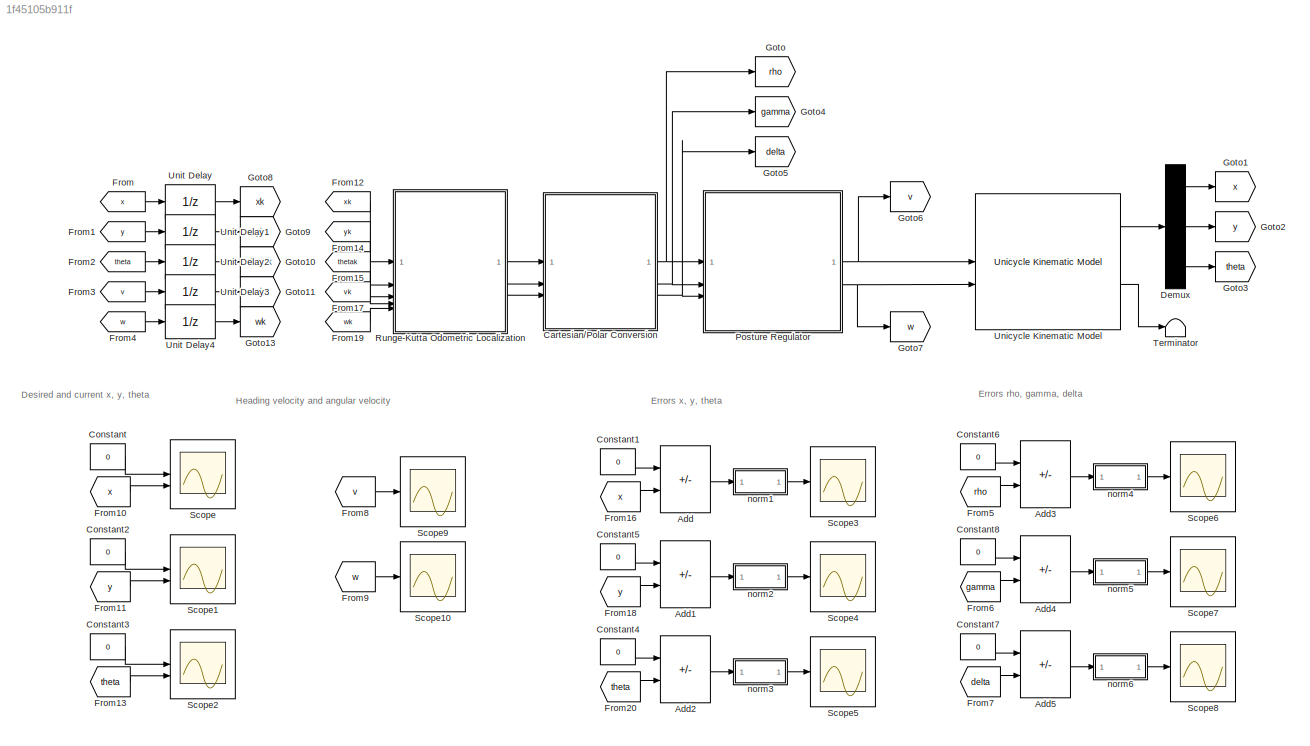
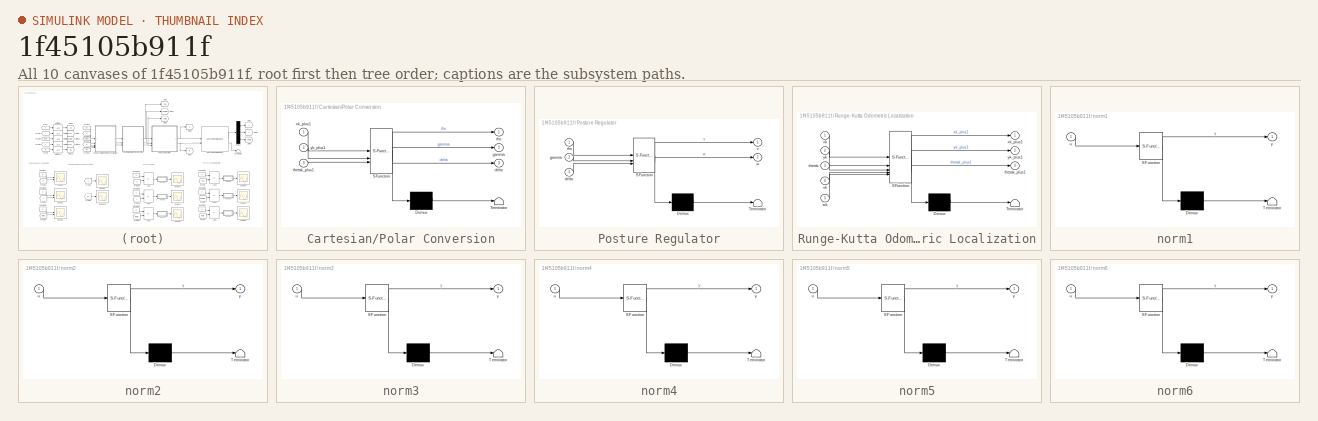
[diagram: thumbnail index - all 10 canvases of the model, root first then tree order]
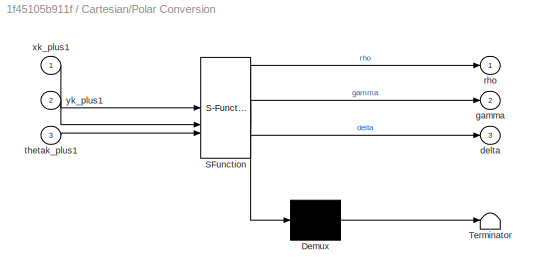
MODEL slx_1f45105b911f
KIND model
CONFIG AbsTol = auto
CONFIG EnableMultiTasking = off
CONFIG FixedStep = auto
CONFIG MaxStep = auto
CONFIG MinStep = auto
CONFIG RelTol = 1e-3
CONFIG SampleTimeConstraint = Unconstrained
CONFIG SolverName = VariableStepAuto
CONFIG StartTime = 0.0
CONFIG StopTime = 15
BLOCK [Sum] Add
  IconShape = rectangular
  Inputs = +-
BLOCK [Sum] Add1
  IconShape = rectangular
  Inputs = +-
BLOCK [Sum] Add2
  IconShape = rectangular
  Inputs = +-
BLOCK [Sum] Add3
  IconShape = rectangular
  Inputs = +-
BLOCK [Sum] Add4
  IconShape = rectangular
  Inputs = +-
BLOCK [Sum] Add5
  IconShape = rectangular
  Inputs = +-
BLOCK [SubSystem] Cartesian//Polar Conversion
  ErrorFcn = Stateflow.Translate.translate
  PermitHierarchicalResolution = ExplicitOnly
  SFBlockType = MATLAB Function
  TreatAsAtomicUnit = on
BLOCK [Demux] Cartesian//Polar Conversion/ Demux 
  Outputs = 1
BLOCK [S-Function] Cartesian//Polar Conversion/ SFunction 
  EnableBusSupport = on
  FunctionName = sf_sfun
  PortCounts = [3 4]
  SFcnIsStateOwnerBlock = off
  SFunctionDeploymentMode = off
  Tag = Stateflow S-Function 3
BLOCK [Terminator] Cartesian//Polar Conversion/ Terminator 
BLOCK [Outport] Cartesian//Polar Conversion/delta
  Port = 3
BLOCK [Outport] Cartesian//Polar Conversion/gamma
  Port = 2
BLOCK [Outport] Cartesian//Polar Conversion/rho
BLOCK [Inport] Cartesian//Polar Conversion/thetak_plus1
  Port = 3
BLOCK [Inport] Cartesian//Polar Conversion/xk_plus1
BLOCK [Inport] Cartesian//Polar Conversion/yk_plus1
  Port = 2
BLOCK [Constant] Constant
  Value = 0
BLOCK [Constant] Constant1
  Value = 0
BLOCK [Constant] Constant2
  Value = 0
BLOCK [Constant] Constant3
  Value = 0
BLOCK [Constant] Constant4
  Value = 0
BLOCK [Constant] Constant5
  Value = 0
BLOCK [Constant] Constant6
  Value = 0
BLOCK [Constant] Constant7
  Value = 0
BLOCK [Constant] Constant8
  Value = 0
BLOCK [Demux] Demux
  Outputs = 3
BLOCK [From] From
  GotoTag = x
BLOCK [From] From1
  GotoTag = y
BLOCK [From] From10
  GotoTag = x
BLOCK [From] From11
  GotoTag = y
BLOCK [From] From12
  GotoTag = xk
BLOCK [From] From13
  GotoTag = theta
BLOCK [From] From14
  GotoTag = yk
BLOCK [From] From15
  GotoTag = thetak
BLOCK [From] From16
  GotoTag = x
BLOCK [From] From17
  GotoTag = vk
BLOCK [From] From18
  GotoTag = y
BLOCK [From] From19
  GotoTag = wk
BLOCK [From] From2
  GotoTag = theta
BLOCK [From] From20
  GotoTag = theta
BLOCK [From] From3
  GotoTag = v
BLOCK [From] From4
  GotoTag = w
BLOCK [From] From5
  GotoTag = rho
BLOCK [From] From6
  GotoTag = gamma
BLOCK [From] From7
  GotoTag = delta
BLOCK [From] From8
  GotoTag = v
BLOCK [From] From9
  GotoTag = w
BLOCK [Goto] Goto
  GotoTag = rho
BLOCK [Goto] Goto1
  GotoTag = x
BLOCK [Goto] Goto10
  GotoTag = thetak
BLOCK [Goto] Goto11
  GotoTag = vk
BLOCK [Goto] Goto13
  GotoTag = wk
BLOCK [Goto] Goto2
  GotoTag = y
BLOCK [Goto] Goto3
  GotoTag = theta
BLOCK [Goto] Goto4
  GotoTag = gamma
BLOCK [Goto] Goto5
  GotoTag = delta
BLOCK [Goto] Goto6
  GotoTag = v
BLOCK [Goto] Goto7
  GotoTag = w
BLOCK [Goto] Goto8
  GotoTag = xk
BLOCK [Goto] Goto9
  GotoTag = yk
BLOCK [SubSystem] Posture Regulator
  ErrorFcn = Stateflow.Translate.translate
  PermitHierarchicalResolution = ExplicitOnly
  SFBlockType = MATLAB Function
  TreatAsAtomicUnit = on
BLOCK [Demux] Posture Regulator/ Demux 
  Outputs = 1
BLOCK [S-Function] Posture Regulator/ SFunction 
  EnableBusSupport = on
  FunctionName = sf_sfun
  PortCounts = [3 3]
  SFcnIsStateOwnerBlock = off
  SFunctionDeploymentMode = off
  Tag = Stateflow S-Function 2
BLOCK [Terminator] Posture Regulator/ Terminator 
BLOCK [Inport] Posture Regulator/delta
  Port = 3
BLOCK [Inport] Posture Regulator/gamma
  Port = 2
BLOCK [Inport] Posture Regulator/rho
BLOCK [Outport] Posture Regulator/v
BLOCK [Outport] Posture Regulator/w
  Port = 2
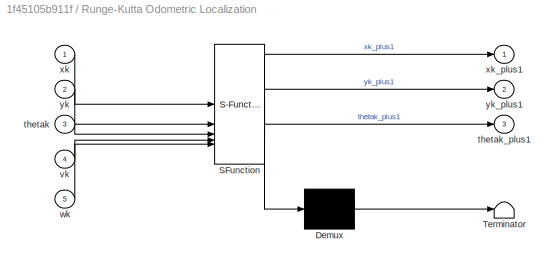
BLOCK [SubSystem] Runge-Kutta Odometric Localization
  ErrorFcn = Stateflow.Translate.translate
  PermitHierarchicalResolution = ExplicitOnly
  SFBlockType = MATLAB Function
  TreatAsAtomicUnit = on
BLOCK [Demux] Runge-Kutta Odometric Localization/ Demux 
  Outputs = 1
BLOCK [S-Function] Runge-Kutta Odometric Localization/ SFunction 
  EnableBusSupport = on
  FunctionName = sf_sfun
  PortCounts = [5 4]
  SFcnIsStateOwnerBlock = off
  SFunctionDeploymentMode = off
  Tag = Stateflow S-Function 1
BLOCK [Terminator] Runge-Kutta Odometric Localization/ Terminator 
BLOCK [Inport] Runge-Kutta Odometric Localization/thetak
  Port = 3
BLOCK [Outport] Runge-Kutta Odometric Localization/thetak_plus1
  Port = 3
BLOCK [Inport] Runge-Kutta Odometric Localization/vk
  Port = 4
BLOCK [Inport] Runge-Kutta Odometric Localization/wk
  Port = 5
BLOCK [Inport] Runge-Kutta Odometric Localization/xk
BLOCK [Outport] Runge-Kutta Odometric Localization/xk_plus1
BLOCK [Inport] Runge-Kutta Odometric Localization/yk
  Port = 2
BLOCK [Outport] Runge-Kutta Odometric Localization/yk_plus1
  Port = 2
BLOCK [Scope] Scope
  Floating = off
  NumInputPorts = 2
  ScopeSpecificationString = Simulink.scopes.TimeScopeBlockCfg('CurrentConfiguration', extmgr.ConfigurationSet(extmgr.Configuration('Core','General UI',true,'FigureColor',[1 1 1]),extmgr.Configuration('Core','Source UI',true),extmgr.Configuration('Sources','WiredSimulink',true,'DataLoggingVariableName','ScopeData1'),extmgr.Configuration('Visuals','Time Domain',true,'SerializedDisplays',{struct('MinYLimReal','-0.25026','MaxYLi...<+2309ch>
BLOCK [Scope] Scope1
  Floating = off
  NumInputPorts = 2
  ScopeSpecificationString = Simulink.scopes.TimeScopeBlockCfg('CurrentConfiguration', extmgr.ConfigurationSet(extmgr.Configuration('Core','General UI',true,'FigureColor',[1 1 1]),extmgr.Configuration('Core','Source UI',true),extmgr.Configuration('Sources','WiredSimulink',true,'DataLoggingVariableName','ScopeData2'),extmgr.Configuration('Visuals','Time Domain',true,'SerializedDisplays',{struct('MinYLimReal','-0.15333','MaxYLi...<+2309ch>
BLOCK [Scope] Scope10
  Floating = off
  NumInputPorts = 1
  ScopeSpecificationString = Simulink.scopes.TimeScopeBlockCfg('CurrentConfiguration', extmgr.ConfigurationSet(extmgr.Configuration('Core','General UI',true,'FigureColor',[1 1 1]),extmgr.Configuration('Core','Source UI',true),extmgr.Configuration('Sources','WiredSimulink',true,'DataLoggingVariableName','ScopeData10'),extmgr.Configuration('Visuals','Time Domain',true,'SerializedDisplays',{struct('MinYLimReal','-1.9635','MaxYLi...<+2277ch>
BLOCK [Scope] Scope2
  Floating = off
  NumInputPorts = 2
  ScopeSpecificationString = Simulink.scopes.TimeScopeBlockCfg('CurrentConfiguration', extmgr.ConfigurationSet(extmgr.Configuration('Core','General UI',true,'FigureColor',[1 1 1]),extmgr.Configuration('Core','Source UI',true),extmgr.Configuration('Sources','WiredSimulink',true,'DataLoggingVariableName','ScopeData3'),extmgr.Configuration('Visuals','Time Domain',true,'SerializedDisplays',{struct('MinYLimReal','-0.4578','MaxYLim...<+2348ch>
BLOCK [Scope] Scope3
  Floating = off
  NumInputPorts = 1
  ScopeSpecificationString = Simulink.scopes.TimeScopeBlockCfg('CurrentConfiguration', extmgr.ConfigurationSet(extmgr.Configuration('Core','General UI',true,'FigureColor',[1 1 1]),extmgr.Configuration('Core','Source UI',true),extmgr.Configuration('Sources','WiredSimulink',true,'DataLoggingVariableName','ScopeData4'),extmgr.Configuration('Visuals','Time Domain',true,'SerializedDisplays',{struct('MinYLimReal','-0.25','MaxYLimRe...<+2235ch>
BLOCK [Scope] Scope4
  Floating = off
  NumInputPorts = 1
  ScopeSpecificationString = Simulink.scopes.TimeScopeBlockCfg('CurrentConfiguration', extmgr.ConfigurationSet(extmgr.Configuration('Core','General UI',true,'FigureColor',[1 1 1]),extmgr.Configuration('Core','Source UI',true),extmgr.Configuration('Sources','WiredSimulink',true,'DataLoggingVariableName','ScopeData5'),extmgr.Configuration('Visuals','Time Domain',true,'SerializedDisplays',{struct('MinYLimReal','-0.16009','MaxYLi...<+2253ch>
BLOCK [Scope] Scope5
  Floating = off
  NumInputPorts = 1
  ScopeSpecificationString = Simulink.scopes.TimeScopeBlockCfg('CurrentConfiguration', extmgr.ConfigurationSet(extmgr.Configuration('Core','General UI',true,'FigureColor',[1 1 1]),extmgr.Configuration('Core','Source UI',true),extmgr.Configuration('Sources','WiredSimulink',true,'DataLoggingVariableName','ScopeData6'),extmgr.Configuration('Visuals','Time Domain',true,'SerializedDisplays',{struct('MinYLimReal','-0.45748','MaxYLi...<+2261ch>
BLOCK [Scope] Scope6
  Floating = off
  NumInputPorts = 1
  ScopeSpecificationString = Simulink.scopes.TimeScopeBlockCfg('CurrentConfiguration', extmgr.ConfigurationSet(extmgr.Configuration('Core','General UI',true,'FigureColor',[1 1 1]),extmgr.Configuration('Core','Source UI',true),extmgr.Configuration('Sources','WiredSimulink',true,'DataLoggingVariableName','ScopeData1'),extmgr.Configuration('Visuals','Time Domain',true,'SerializedDisplays',{struct('MinYLimReal','-0.63738','MaxYLi...<+2253ch>
BLOCK [Scope] Scope7
  Floating = off
  NumInputPorts = 1
  ScopeSpecificationString = Simulink.scopes.TimeScopeBlockCfg('CurrentConfiguration', extmgr.ConfigurationSet(extmgr.Configuration('Core','General UI',true,'FigureColor',[1 1 1]),extmgr.Configuration('Core','Source UI',true),extmgr.Configuration('Sources','WiredSimulink',true,'DataLoggingVariableName','ScopeData2'),extmgr.Configuration('Visuals','Time Domain',true,'SerializedDisplays',{struct('MinYLimReal','-0.39212','MaxYLi...<+2261ch>
BLOCK [Scope] Scope8
  Floating = off
  NumInputPorts = 1
  ScopeSpecificationString = Simulink.scopes.TimeScopeBlockCfg('CurrentConfiguration', extmgr.ConfigurationSet(extmgr.Configuration('Core','General UI',true,'FigureColor',[1 1 1]),extmgr.Configuration('Core','Source UI',true),extmgr.Configuration('Sources','WiredSimulink',true,'DataLoggingVariableName','ScopeData3'),extmgr.Configuration('Visuals','Time Domain',true,'SerializedDisplays',{struct('MinYLimReal','-0.45289','MaxYLi...<+2261ch>
BLOCK [Scope] Scope9
  Floating = off
  NumInputPorts = 1
  ScopeSpecificationString = Simulink.scopes.TimeScopeBlockCfg('CurrentConfiguration', extmgr.ConfigurationSet(extmgr.Configuration('Core','General UI',true,'FigureColor',[1 1 1]),extmgr.Configuration('Core','Source UI',true),extmgr.Configuration('Sources','WiredSimulink',true,'DataLoggingVariableName','ScopeData9'),extmgr.Configuration('Visuals','Time Domain',true,'SerializedDisplays',{struct('MinYLimReal','-21.95011','MaxYL...<+2255ch>
BLOCK [Terminator] Terminator
BLOCK [Reference] Unicycle Kinematic Model  REF=robotmobilelib/Unicycle Kinematic Model
  SourceBlock = robotmobilelib/Unicycle Kinematic Model
  SourceType = Unicycle Kinematic Model
BLOCK [UnitDelay] Unit Delay
  HasFrameUpgradeWarning = on
  SampleTime = 0.001
BLOCK [UnitDelay] Unit Delay1
  HasFrameUpgradeWarning = on
  SampleTime = 0.001
BLOCK [UnitDelay] Unit Delay2
  HasFrameUpgradeWarning = on
  SampleTime = 0.001
BLOCK [UnitDelay] Unit Delay3
  HasFrameUpgradeWarning = on
  SampleTime = 0.001
BLOCK [UnitDelay] Unit Delay4
  HasFrameUpgradeWarning = on
  SampleTime = 0.001
BLOCK [SubSystem] norm1
  ErrorFcn = Stateflow.Translate.translate
  NameLocation = top
  PermitHierarchicalResolution = ExplicitOnly
  SFBlockType = MATLAB Function
  TreatAsAtomicUnit = on
BLOCK [Demux] norm1/ Demux 
  Outputs = 1
BLOCK [S-Function] norm1/ SFunction 
  EnableBusSupport = on
  FunctionName = sf_sfun
  PortCounts = [1 2]
  SFcnIsStateOwnerBlock = off
  SFunctionDeploymentMode = off
  Tag = Stateflow S-Function 5
BLOCK [Terminator] norm1/ Terminator 
BLOCK [Inport] norm1/u
BLOCK [Outport] norm1/y
BLOCK [SubSystem] norm2
  ErrorFcn = Stateflow.Translate.translate
  NameLocation = top
  PermitHierarchicalResolution = ExplicitOnly
  SFBlockType = MATLAB Function
  TreatAsAtomicUnit = on
BLOCK [Demux] norm2/ Demux 
  Outputs = 1
BLOCK [S-Function] norm2/ SFunction 
  EnableBusSupport = on
  FunctionName = sf_sfun
  PortCounts = [1 2]
  SFcnIsStateOwnerBlock = off
  SFunctionDeploymentMode = off
  Tag = Stateflow S-Function 6
BLOCK [Terminator] norm2/ Terminator 
BLOCK [Inport] norm2/u
BLOCK [Outport] norm2/y
BLOCK [SubSystem] norm3
  ErrorFcn = Stateflow.Translate.translate
  NameLocation = top
  PermitHierarchicalResolution = ExplicitOnly
  SFBlockType = MATLAB Function
  TreatAsAtomicUnit = on
BLOCK [Demux] norm3/ Demux 
  Outputs = 1
BLOCK [S-Function] norm3/ SFunction 
  EnableBusSupport = on
  FunctionName = sf_sfun
  PortCounts = [1 2]
  SFcnIsStateOwnerBlock = off
  SFunctionDeploymentMode = off
  Tag = Stateflow S-Function 7
BLOCK [Terminator] norm3/ Terminator 
BLOCK [Inport] norm3/u
BLOCK [Outport] norm3/y
BLOCK [SubSystem] norm4
  ErrorFcn = Stateflow.Translate.translate
  NameLocation = top
  PermitHierarchicalResolution = ExplicitOnly
  SFBlockType = MATLAB Function
  TreatAsAtomicUnit = on
BLOCK [Demux] norm4/ Demux 
  Outputs = 1
BLOCK [S-Function] norm4/ SFunction 
  EnableBusSupport = on
  FunctionName = sf_sfun
  PortCounts = [1 2]
  SFcnIsStateOwnerBlock = off
  SFunctionDeploymentMode = off
  Tag = Stateflow S-Function 4
BLOCK [Terminator] norm4/ Terminator 
BLOCK [Inport] norm4/u
BLOCK [Outport] norm4/y
BLOCK [SubSystem] norm5
  ErrorFcn = Stateflow.Translate.translate
  NameLocation = top
  PermitHierarchicalResolution = ExplicitOnly
  SFBlockType = MATLAB Function
  TreatAsAtomicUnit = on
BLOCK [Demux] norm5/ Demux 
  Outputs = 1
BLOCK [S-Function] norm5/ SFunction 
  EnableBusSupport = on
  FunctionName = sf_sfun
  PortCounts = [1 2]
  SFcnIsStateOwnerBlock = off
  SFunctionDeploymentMode = off
  Tag = Stateflow S-Function 8
BLOCK [Terminator] norm5/ Terminator 
BLOCK [Inport] norm5/u
BLOCK [Outport] norm5/y
BLOCK [SubSystem] norm6
  ErrorFcn = Stateflow.Translate.translate
  NameLocation = top
  PermitHierarchicalResolution = ExplicitOnly
  SFBlockType = MATLAB Function
  TreatAsAtomicUnit = on
BLOCK [Demux] norm6/ Demux 
  Outputs = 1
BLOCK [S-Function] norm6/ SFunction 
  EnableBusSupport = on
  FunctionName = sf_sfun
  PortCounts = [1 2]
  SFcnIsStateOwnerBlock = off
  SFunctionDeploymentMode = off
  Tag = Stateflow S-Function 9
BLOCK [Terminator] norm6/ Terminator 
BLOCK [Inport] norm6/u
BLOCK [Outport] norm6/y
ANNOTATION (root): Desired and current x, y, theta
ANNOTATION (root): Errors rho, gamma, delta
ANNOTATION (root): Errors x, y, theta
ANNOTATION (root): Heading velocity and angular velocity
LINE Add1:1 -> norm2:1
LINE Add2:1 -> norm3:1
LINE Add3:1 -> norm4:1
LINE Add4:1 -> norm5:1
LINE Add5:1 -> norm6:1
LINE Add:1 -> norm1:1
NET Cartesian//Polar Conversion:1 -> Goto:1, Posture Regulator:1
NET Cartesian//Polar Conversion:2 -> Goto4:1, Posture Regulator:2
NET Cartesian//Polar Conversion:3 -> Goto5:1, Posture Regulator:3
LINE Constant1:1 -> Add:1
LINE Constant2:1 -> Scope1:1
LINE Constant3:1 -> Scope2:1
LINE Constant4:1 -> Add2:1
LINE Constant5:1 -> Add1:1
LINE Constant6:1 -> Add3:1
LINE Constant7:1 -> Add5:1
LINE Constant8:1 -> Add4:1
LINE Constant:1 -> Scope:1
LINE Demux:1 -> Goto1:1
LINE Demux:2 -> Goto2:1
LINE Demux:3 -> Goto3:1
LINE From10:1 -> Scope:2
LINE From11:1 -> Scope1:2
LINE From12:1 -> Runge-Kutta Odometric Localization:1
LINE From13:1 -> Scope2:2
LINE From14:1 -> Runge-Kutta Odometric Localization:2
LINE From15:1 -> Runge-Kutta Odometric Localization:3
LINE From16:1 -> Add:2
LINE From17:1 -> Runge-Kutta Odometric Localization:4
LINE From18:1 -> Add1:2
LINE From19:1 -> Runge-Kutta Odometric Localization:5
LINE From1:1 -> Unit Delay1:1
LINE From20:1 -> Add2:2
LINE From2:1 -> Unit Delay2:1
LINE From3:1 -> Unit Delay3:1
LINE From4:1 -> Unit Delay4:1
LINE From5:1 -> Add3:2
LINE From6:1 -> Add4:2
LINE From7:1 -> Add5:2
LINE From8:1 -> Scope9:1
LINE From9:1 -> Scope10:1
LINE From:1 -> Unit Delay:1
NET Posture Regulator:1 -> Goto6:1, Unicycle Kinematic Model:1
NET Posture Regulator:2 -> Goto7:1, Unicycle Kinematic Model:2
LINE Runge-Kutta Odometric Localization:1 -> Cartesian//Polar Conversion:1
LINE Runge-Kutta Odometric Localization:2 -> Cartesian//Polar Conversion:2
LINE Runge-Kutta Odometric Localization:3 -> Cartesian//Polar Conversion:3
LINE Unicycle Kinematic Model:1 -> Demux:1
LINE Unicycle Kinematic Model:2 -> Terminator:1
LINE Unit Delay1:1 -> Goto9:1
LINE Unit Delay2:1 -> Goto10:1
LINE Unit Delay3:1 -> Goto11:1
LINE Unit Delay4:1 -> Goto13:1
LINE Unit Delay:1 -> Goto8:1
LINE norm1:1 -> Scope3:1
LINE norm2:1 -> Scope4:1
LINE norm3:1 -> Scope5:1
LINE norm4:1 -> Scope6:1
LINE norm5:1 -> Scope7:1
LINE norm6:1 -> Scope8:1
note: NET lines group one-source signal fan-out (src -> all destinations, sorted); 1:1 wires keep LINE
CHART Runge-Kutta Odometric Localization states=1 transitions=1
  STATE_LABEL 'eML_blk_kernel()'
  STATE_LABEL 'SCRIPT:\nfunction [xk_plus1,yk_plus1,thetak_plus1] = fcn(xk,yk,thetak,vk,wk)\n\nTs=0.001;\n\nxk_plus1=xk+vk*Ts*cos(thetak+(wk*Ts)/2);\nyk_plus1=yk+vk*Ts*sin(thetak+(wk*Ts)/2);\nthetak_plus1=thetak+wk*Ts;\n\nend\n'
CHART Posture Regulator states=1 transitions=1
  STATE_LABEL 'eML_blk_kernel()'
  STATE_LABEL 'SCRIPT:\nfunction [v,w] = fcn(rho,gamma,delta)\n\nk1=4;\nk2=5;\nk3=0.2;\n\nv=k1*rho*cos(gamma);\nw=k2*gamma+k1*sin(gamma)*cos(gamma)*(1+(k3*delta)/gamma);\n\nend\n'
CHART Cartesian//Polar Conversion states=1 transitions=1
  STATE_LABEL 'eML_blk_kernel()'
  STATE_LABEL 'SCRIPT:\nfunction [rho,gamma,delta] = fcn(xk_plus1,yk_plus1,thetak_plus1)\n\nrho=sqrt(xk_plus1^2+yk_plus1^2);\ngamma=atan2(yk_plus1,xk_plus1)-thetak_plus1+pi;\ndelta=gamma+thetak_plus1;\n\nend\n'
CHART norm4 states=1 transitions=1
  STATE_LABEL 'eML_blk_kernel()'
  STATE_LABEL 'SCRIPT:\nfunction y = norm(u)\ny = norm(u);\n'
CHART norm1 states=1 transitions=1
  STATE_LABEL 'eML_blk_kernel()'
  STATE_LABEL 'SCRIPT:\nfunction y = norm(u)\ny = norm(u);\n'
CHART norm2 states=1 transitions=1
  STATE_LABEL 'eML_blk_kernel()'
  STATE_LABEL 'SCRIPT:\nfunction y = norm(u)\ny = norm(u);\n'
CHART norm3 states=1 transitions=1
  STATE_LABEL 'eML_blk_kernel()'
  STATE_LABEL 'SCRIPT:\nfunction y = norm(u)\ny = norm(u);\n'
CHART norm5 states=1 transitions=1
  STATE_LABEL 'eML_blk_kernel()'
  STATE_LABEL 'SCRIPT:\nfunction y = norm(u)\ny = norm(u);\n'
CHART norm6 states=1 transitions=1
  STATE_LABEL 'eML_blk_kernel()'
  STATE_LABEL 'SCRIPT:\nfunction y = norm(u)\ny = norm(u);\n'
CHART  states=0 transitions=0
CHART  states=0 transitions=0
CHART  states=0 transitions=0
CHART  states=0 transitions=0
CHART  states=0 transitions=0
CHART  states=0 transitions=0
CHART  states=0 transitions=0
CHART  states=0 transitions=0
CHART  states=0 transitions=0
